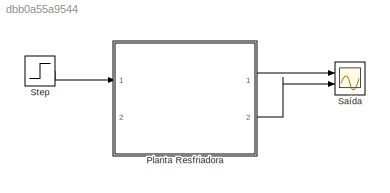
MODEL slx_dbb0a55a9544
KIND model
CONFIG AbsTol = auto
CONFIG FixedStep = auto
CONFIG MaxStep = auto
CONFIG MinStep = auto
CONFIG RelTol = 1e-3
CONFIG SampleTimeConstraint = Unconstrained
CONFIG Solver = VariableStepAuto
CONFIG SolverMode = Auto
CONFIG SolverName = VariableStepAuto
CONFIG StartTime = 0.0
CONFIG StopTime = 1500
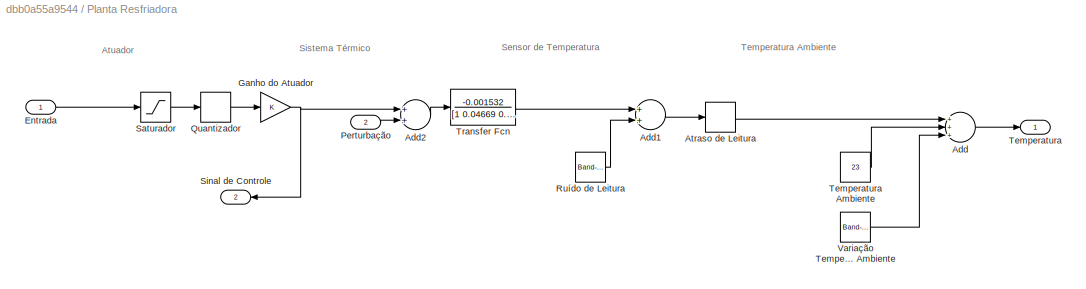
BLOCK [SubSystem] Planta Resfriadora
  Ports = [2, 2]
  RequestExecContextInheritance = off
  Variant = off
BLOCK [Sum] Planta Resfriadora/Add
  InputSameDT = off
  Inputs = +++
  OutDataTypeStr = Inherit: Inherit via internal rule
  Ports = [3, 1]
  SaturateOnIntegerOverflow = off
BLOCK [Sum] Planta Resfriadora/Add1
  InputSameDT = off
  OutDataTypeStr = Inherit: Inherit via internal rule
  Ports = [2, 1]
  SaturateOnIntegerOverflow = off
BLOCK [Sum] Planta Resfriadora/Add2
  InputSameDT = off
  OutDataTypeStr = Inherit: Inherit via internal rule
  Ports = [2, 1]
  SaturateOnIntegerOverflow = off
BLOCK [TransportDelay] Planta Resfriadora/Atraso de Leitura
  Ports = [1, 1]
BLOCK [Inport] Planta Resfriadora/Entrada
  IconDisplay = Port number
BLOCK [Gain] Planta Resfriadora/Ganho do Atuador
  OutDataTypeStr = Inherit: Inherit via internal rule
  ParamDataTypeStr = Inherit: Inherit via internal rule
  SaturateOnIntegerOverflow = off
BLOCK [Inport] Planta Resfriadora/Perturbação
  IconDisplay = Port number
  Port = 2
BLOCK [Quantizer] Planta Resfriadora/Quantizador
  QuantizationInterval = 1/255
BLOCK [Reference] Planta Resfriadora/Ruído de Leitura  REF=simulink/Sources/Band-Limited
White Noise
  Ports = [0, 1]
  SourceBlock = simulink/Sources/Band-Limited\nWhite Noise
  SourceType = Band-Limited White Noise.
BLOCK [Saturate] Planta Resfriadora/Saturador
  InputPortMap = u0
  LowerLimit = 0
  Ports = [1, 1]
  UpperLimit = 5
BLOCK [Outport] Planta Resfriadora/Sinal de Controle
  IconDisplay = Port number
  Port = 2
BLOCK [Outport] Planta Resfriadora/Temperatura
  IconDisplay = Port number
BLOCK [Constant] Planta Resfriadora/Temperatura Ambiente
  Value = 23
BLOCK [TransferFcn] Planta Resfriadora/Transfer Fcn
  Denominator = [1 0.04669 0.0004554]
  Numerator = -0.001532
BLOCK [Reference] Planta Resfriadora/Variação Temperatura Ambiente  REF=simulink/Sources/Band-Limited
White Noise
  Ports = [0, 1]
  SourceBlock = simulink/Sources/Band-Limited\nWhite Noise
  SourceType = Band-Limited White Noise.
BLOCK [Scope] Saída
  NumInputPorts = 2
  Ports = [2]
  ScopeSpecificationString = Simulink.scopes.TimeScopeBlockCfg('CurrentConfiguration', extmgr.ConfigurationSet(extmgr.Configuration('Core','General UI',true),extmgr.Configuration('Core','Source UI',true),extmgr.Configuration('Sources','WiredSimulink',true),extmgr.Configuration('Visuals','Time Domain',true,'SerializedDisplays',{struct('MinYLimReal','-2.87977','MaxYLimReal','25.91796','YLabelReal','','MinYLimMag','0.00000','Max...<+1413ch>
BLOCK [Step] Step
  After = 5
  SampleTime = 0
  Time = 50
ANNOTATION Planta Resfriadora: Atuador
ANNOTATION Planta Resfriadora: Sensor de Temperatura
ANNOTATION Planta Resfriadora: Sistema Térmico
ANNOTATION Planta Resfriadora: Temperatura Ambiente
LINE Planta Resfriadora/Add1:1 -> Planta Resfriadora/Atraso de Leitura:1
LINE Planta Resfriadora/Add2:1 -> Planta Resfriadora/Transfer Fcn:1
LINE Planta Resfriadora/Add:1 -> Planta Resfriadora/Temperatura:1
LINE Planta Resfriadora/Atraso de Leitura:1 -> Planta Resfriadora/Add:1
LINE Planta Resfriadora/Entrada:1 -> Planta Resfriadora/Saturador:1
NET Planta Resfriadora/Ganho do Atuador:1 -> Planta Resfriadora/Add2:1, Planta Resfriadora/Sinal de Controle:1
LINE Planta Resfriadora/Perturbação:1 -> Planta Resfriadora/Add2:2
LINE Planta Resfriadora/Quantizador:1 -> Planta Resfriadora/Ganho do Atuador:1
LINE Planta Resfriadora/Ruído de Leitura:1 -> Planta Resfriadora/Add1:2
LINE Planta Resfriadora/Saturador:1 -> Planta Resfriadora/Quantizador:1
LINE Planta Resfriadora/Temperatura Ambiente:1 -> Planta Resfriadora/Add:2
LINE Planta Resfriadora/Transfer Fcn:1 -> Planta Resfriadora/Add1:1
LINE Planta Resfriadora/Variação Temperatura Ambiente:1 -> Planta Resfriadora/Add:3
LINE Planta Resfriadora:1 -> Saída:1
LINE Planta Resfriadora:2 -> Saída:2
LINE Step:1 -> Planta Resfriadora:1
note: NET lines group one-source signal fan-out (src -> all destinations, sorted); 1:1 wires keep LINE
